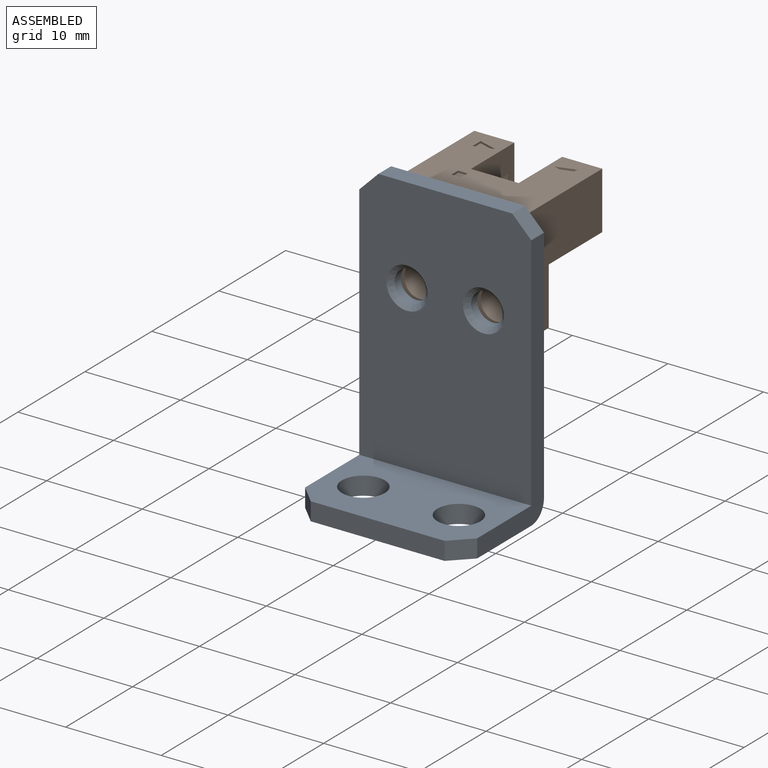
[diagram: assembled view]
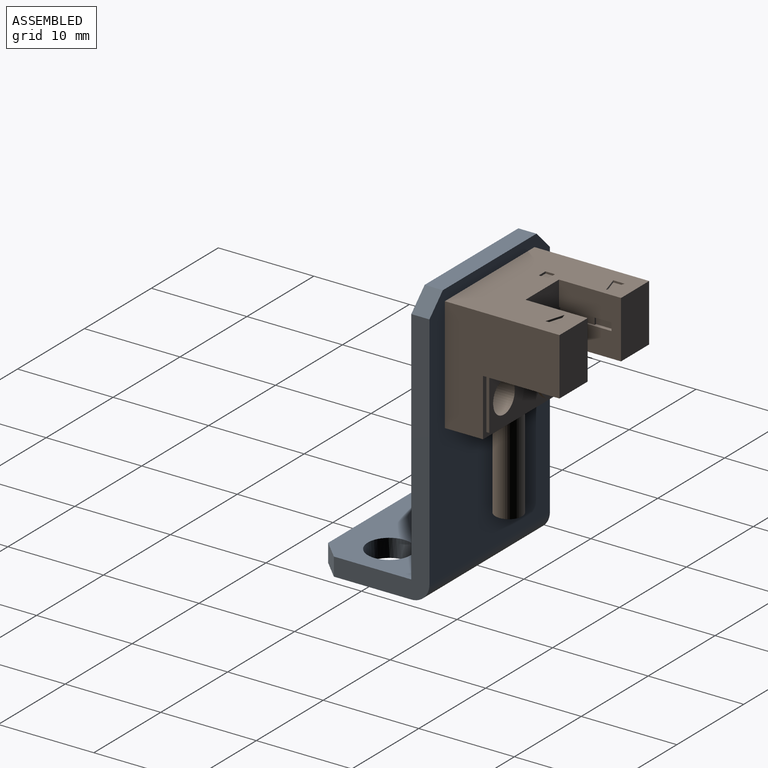
[diagram: assembled view, second angle]
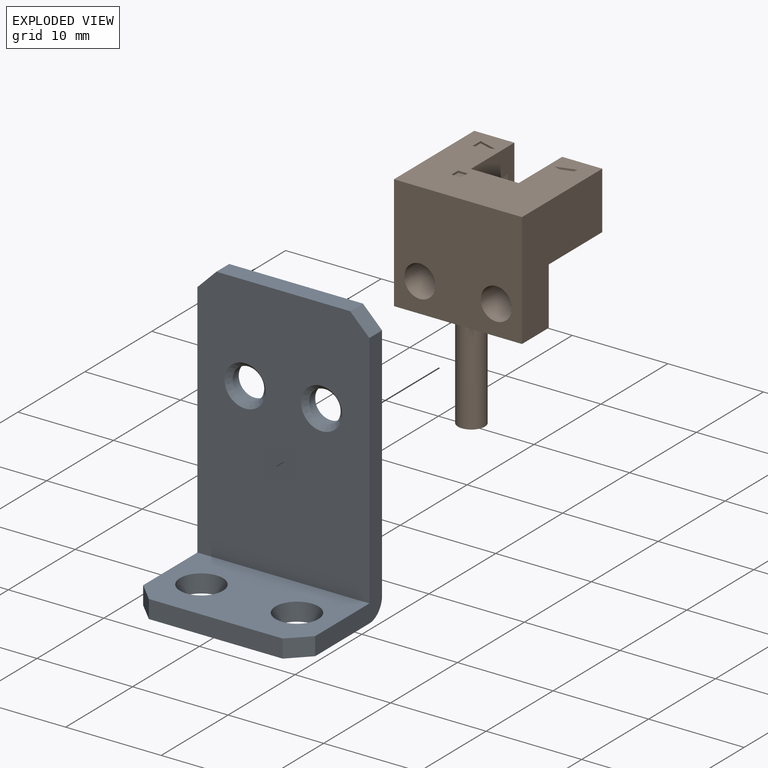
[diagram: exploded view]
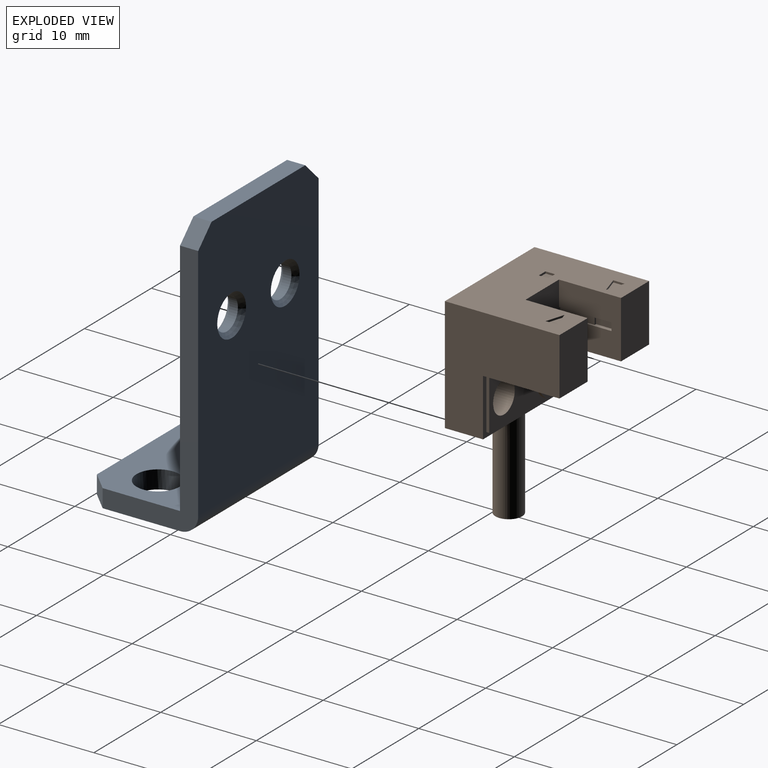
[diagram: exploded view, second angle]
ASSEMBLY  parts=2 mates=2
PART A: 21 faces, bbox 18x12x29 mm
  f0: plane 27.1x18mm, normal (0,-1,0), area 454.8mm2, adj f5,f6,f7,f14,f15,f16,f18,f19
  f1: plane 18x10.1mm, normal (0,0,-1), area 146mm2, adj f2,f6,f7,f8,f9,f16,f17,f20
  f2: plane 14x1.9mm, normal (0,1,0), area 26.6mm2, adj f1,f3,f17,f20
  f3: plane 18x10.1mm, normal (0,0,1), area 146mm2, adj f2,f4,f6,f7,f8,f9,f17,f20
  f4: plane 27.1x18mm, normal (0,1,0), area 454.8mm2, adj f3,f5,f6,f7,f12,f13,f18,f19
  f5: plane 14x1.9mm, normal (0,0,1), area 26.6mm2, adj f0,f4,f18,f19
  f6: plane 27x10mm, normal (1,0,0), area 65.9mm2, adj f0,f1,f3,f4,f16,f19,f20
  f7: plane 27x10mm, normal (-1,0,0), area 65.9mm2, adj f0,f1,f3,f4,f16,f17,f18
  f8: cylinder r=2.25mm len=4.5mm, axis (0,0,-1), area 26.9mm2, adj f1,f3
  f9: cylinder r=2.25mm len=4.5mm, axis (0,0,-1), area 26.9mm2, adj f1,f3
  f10: cylinder r=1.65mm len=3.3mm, axis (0,-1,0), area 9.3mm2, adj f13,f15
  f11: cylinder r=1.65mm len=3.3mm, axis (0,-1,0), area 9.3mm2, adj f12,f14
  f12: cone r=2.15mm half-angle=45deg, axis (0,1,0), area 8.4mm2, adj f4,f11
  f13: cone r=2.15mm half-angle=45deg, axis (0,1,0), area 8.4mm2, adj f4,f10
  f14: cone r=1.65mm half-angle=45deg, axis (0,-1,0), area 8.4mm2, adj f0,f11
  f15: cone r=1.65mm half-angle=45deg, axis (0,-1,0), area 8.4mm2, adj f0,f10
  f16: cylinder r=1.9mm len=18mm, axis (-1,0,0), area 53.7mm2, adj f0,f1,f6,f7
  f17: plane 2x2mm, normal (-0.71,0.71,0), area 5.4mm2, adj f1,f2,f3,f7
  f18: plane 2x2mm, normal (-0.71,0,0.71), area 5.4mm2, adj f0,f4,f5,f7
  f19: plane 2x2mm, normal (0.71,0,0.71), area 5.4mm2, adj f0,f4,f5,f6
  f20: plane 2x2mm, normal (0.71,0.71,0), area 5.4mm2, adj f1,f2,f3,f6
PART B: 84 faces, bbox 13.4x12x22 mm
  f0: cylinder r=1.4mm len=10mm, axis (0,0,-1), area 88mm2, adj f64,f83
  f1: plane 13.4x12mm, normal (0,-1,0), area 143.8mm2, adj f5,f10,f11,f64,f69,f70,f71,f72
  f2: plane 5.5x5.2mm, normal (0,1,0), area 19.1mm2, adj f3,f65,f66,f67,f68,f69,f70,f71
  f3: plane 13.4x8mm, normal (0,0,1), area 68.4mm2, adj f2,f4,f8,f10,f11,f12,f13,f14
  f4: plane 13.4x6mm, normal (0,1,0), area 25.2mm2, adj f3,f10,f11,f64,f65,f66,f67,f68
  f5: plane 13.4x12mm, normal (0,0,-1), area 125mm2, adj f1,f8,f10,f11,f12,f13,f14,f15
  f6: plane 3.6x0.8mm, normal (-1,0,0), area 2.9mm2, adj f13,f42,f43,f45
  f7: plane 0.8x0.1mm, normal (-1,0,0), area 0.1mm2, adj f42,f43,f44,f46
  f8: plane 6.7x6mm, normal (-1,0,0), area 34.8mm2, adj f3,f5,f12,f13,f32,f33,f34,f42
  f9: plane 0.8x0.1mm, normal (1,0,0), area 0.1mm2, adj f35,f36,f37,f39
  f10: plane 12x12mm, normal (1,0,0), area 95mm2, adj f1,f3,f4,f5,f12,f26,f27,f28
  f11: plane 12x12mm, normal (-1,0,0), area 96mm2, adj f1,f3,f4,f5,f15,f64
  f12: plane 6x4.2mm, normal (0,1,0), area 25.2mm2, adj f3,f5,f8,f10
  f13: plane 6x5.4mm, normal (0,1,0), area 29.2mm2, adj f3,f5,f6,f8,f14,f31,f32,f33
  f14: plane 6.5x6mm, normal (1,0,0), area 34.6mm2, adj f3,f5,f13,f15,f35,f36,f37
  f15: plane 6x4.2mm, normal (0,1,0), area 25.2mm2, adj f3,f5,f11,f14
  f16: plane 1x0.2mm, normal (1,0,0), area 0.2mm2, adj f3,f17,f19,f20,f73
  f17: plane 1x0.2mm, normal (0,-1,0), area 0.2mm2, adj f3,f16,f18,f20
  f18: plane 1x0.2mm, normal (-1,0,0), area 0.2mm2, adj f3,f17,f19,f20,f73
  f19: plane 1x0.2mm, normal (0,1,0), area 0.2mm2, adj f16,f18,f20,f73
  f20: plane 1x1mm, normal (0,0,1), area 1mm2, adj f16,f17,f18,f19
  f21: plane 1x0.2mm, normal (-1,0,0), area 0.2mm2, adj f5,f22,f24,f25
  f22: plane 1x0.2mm, normal (0,-1,0), area 0.2mm2, adj f5,f21,f23,f25
  f23: plane 1x0.2mm, normal (1,0,0), area 0.2mm2, adj f5,f22,f24,f25
  f24: plane 1x0.2mm, normal (0,1,0), area 0.2mm2, adj f5,f21,f23,f25
  f25: plane 1x1mm, normal (0,0,-1), area 1mm2, adj f21,f22,f23,f24
  f26: plane 1x0.2mm, normal (0,0,-1), area 0.2mm2, adj f10,f27,f29,f30
  f27: plane 1x0.2mm, normal (0,-1,0), area 0.2mm2, adj f10,f26,f28,f30
  f28: plane 1x0.2mm, normal (0,0,1), area 0.2mm2, adj f10,f27,f29,f30
  f29: plane 1x0.2mm, normal (0,1,0), area 0.2mm2, adj f10,f26,f28,f30
  f30: plane 1x1mm, normal (1,0,0), area 1mm2, adj f26,f27,f28,f29
  f31: plane 1x0.2mm, normal (1,0,0), area 0.2mm2, adj f13,f32,f33,f34
  f32: plane 1.12x0.2mm, normal (0,0,1), area 0.2mm2, adj f8,f13,f31,f34
  f33: plane 1.12x0.2mm, normal (0,0,-1), area 0.2mm2, adj f8,f13,f31,f34
  f34: plane 1.12x1mm, normal (0,1,0), area 1.1mm2, adj f8,f31,f32,f33
  f35: plane 5.5x0.4mm, normal (0,0,-1), area 1.5mm2, adj f9,f13,f14,f36,f38,f39,f40,f41
  f36: plane 0.8x0.2mm, normal (0,-1,0), area 0.2mm2, adj f9,f14,f35,f37
  f37: plane 5.5x0.4mm, normal (0,0,1), area 1.5mm2, adj f9,f13,f14,f36,f38,f39,f40,f41
  f38: plane 3.6x0.8mm, normal (1,0,0), area 2.9mm2, adj f13,f35,f37,f40
  f39: plane 0.8x0.2mm, normal (0,-1,0), area 0.2mm2, adj f9,f35,f37,f41
  f40: plane 0.8x0.2mm, normal (0,1,0), area 0.2mm2, adj f35,f37,f38,f41
  f41: plane 1.8x0.8mm, normal (1,0,0), area 1.4mm2, adj f35,f37,f39,f40
  f42: plane 5.5x0.4mm, normal (0,0,-1), area 1.5mm2, adj f6,f7,f8,f13,f44,f45,f46,f47
  f43: plane 5.5x0.4mm, normal (0,0,1), area 1.5mm2, adj f6,f7,f8,f13,f44,f45,f46,f47
  f44: plane 0.8x0.2mm, normal (0,-1,0), area 0.2mm2, adj f7,f8,f42,f43
  f45: plane 0.8x0.2mm, normal (0,1,0), area 0.2mm2, adj f6,f42,f43,f47
  f46: plane 0.8x0.2mm, normal (0,-1,0), area 0.2mm2, adj f7,f42,f43,f47
  f47: plane 1.8x0.8mm, normal (-1,0,0), area 1.4mm2, adj f42,f43,f45,f46
  f48: plane 1.95x0.6mm, normal (-0.29,0.96,0), area 0.4mm2, adj f3,f49,f50,f51
  f49: plane 1.2x0.2mm, normal (1,0,0), area 0.2mm2, adj f3,f48,f50,f51
  f50: plane 1.95x0.6mm, normal (-0.29,-0.96,0), area 0.4mm2, adj f3,f48,f49,f51
  f51: plane 1.95x1.2mm, normal (0,0,1), area 1.2mm2, adj f48,f49,f50
  f52: plane 1.95x0.6mm, normal (0.29,0.96,0), area 0.4mm2, adj f3,f53,f54,f55
  f53: plane 1.95x0.6mm, normal (0.29,-0.96,0), area 0.4mm2, adj f3,f52,f54,f55
  f54: plane 1.2x0.2mm, normal (-1,0,0), area 0.2mm2, adj f3,f52,f53,f55
  f55: plane 1.95x1.2mm, normal (0,0,1), area 1.2mm2, adj f52,f53,f54
  f56: plane 1.95x0.6mm, normal (0.29,0.96,0), area 0.4mm2, adj f5,f57,f58,f59
  f57: plane 1.2x0.2mm, normal (-1,0,0), area 0.2mm2, adj f5,f56,f58,f59
  f58: plane 1.95x0.6mm, normal (0.29,-0.96,0), area 0.4mm2, adj f5,f56,f57,f59
  f59: plane 1.95x1.2mm, normal (0,0,-1), area 1.2mm2, adj f56,f57,f58
  f60: plane 1.95x0.6mm, normal (-0.29,0.96,0), area 0.4mm2, adj f5,f61,f62,f63
  f61: plane 1.95x0.6mm, normal (-0.29,-0.96,0), area 0.4mm2, adj f5,f60,f62,f63
  f62: plane 1.2x0.2mm, normal (1,0,0), area 0.2mm2, adj f5,f60,f61,f63
  f63: plane 1.95x1.2mm, normal (0,0,-1), area 1.2mm2, adj f60,f61,f62
  f64: plane 13.4x4mm, normal (0,0,1), area 47.4mm2, adj f0,f1,f4,f10,f11
  f65: plane 5.5x0.3mm, normal (-1,0,0), area 1.6mm2, adj f2,f3,f4,f66
  f66: plane 3.86x0.3mm, normal (0,0,1), area 1.2mm2, adj f2,f4,f65,f67
  f67: cylinder r=3mm len=2.5mm, axis (0,-1,0), area 0.9mm2, adj f2,f4,f66,f68
  f68: plane 3x0.3mm, normal (1,0,0), area 0.9mm2, adj f2,f3,f4,f67
  f69: cylinder r=1.6mm len=4.3mm, axis (0,1,0), area 21.6mm2, adj f1,f2,f70,f72
  f70: plane 4.3x0.15mm, normal (1,0,0), area 0.6mm2, adj f1,f2,f69,f71
  f71: cylinder r=1.6mm len=4.3mm, axis (0,1,0), area 21.6mm2, adj f1,f2,f70,f72
  f72: plane 4.3x0.15mm, normal (-1,0,0), area 0.6mm2, adj f1,f2,f69,f71
  f73: plane 1x0.2mm, normal (0,0,-1), area 0.2mm2, adj f16,f18,f19,f78
  f74: plane 5.5x0.3mm, normal (1,0,0), area 1.6mm2, adj f3,f4,f77,f78
  f75: plane 3x0.3mm, normal (-1,0,0), area 0.9mm2, adj f3,f4,f76,f78
  f76: cylinder r=3mm len=2.5mm, axis (0,-1,0), area 0.9mm2, adj f4,f75,f77,f78
  f77: plane 3.86x0.3mm, normal (0,0,1), area 1.2mm2, adj f4,f74,f76,f78
  f78: plane 5.5x5.2mm, normal (0,1,0), area 19.1mm2, adj f3,f73,f74,f75,f76,f77,f79,f80
  f79: cylinder r=1.6mm len=4.3mm, axis (0,1,0), area 21.6mm2, adj f1,f78,f80,f82
  f80: plane 4.3x0.15mm, normal (1,0,0), area 0.6mm2, adj f1,f78,f79,f81
  f81: cylinder r=1.6mm len=4.3mm, axis (0,1,0), area 21.6mm2, adj f1,f78,f80,f82
  f82: plane 4.3x0.15mm, normal (-1,0,0), area 0.6mm2, adj f1,f78,f79,f81
  f83: plane 2.8x2.8mm, normal (0,0,1), area 6.2mm2, adj f0
PLACE A rot(axis=(0,0,-1),180deg) t=(10.05,7.15,-26.81)mm
PLACE B rot(axis=(0,-1,0),180deg) t=(5.05,7.15,-7.96)mm
MATE revolute A.f10 <-> B.f81  axis (0,1,0) through (-2.95,7.15,-7.81)mm
MATE revolute A.f11 <-> B.f71  axis (0,1,0) through (5.05,7.15,-7.81)mm
